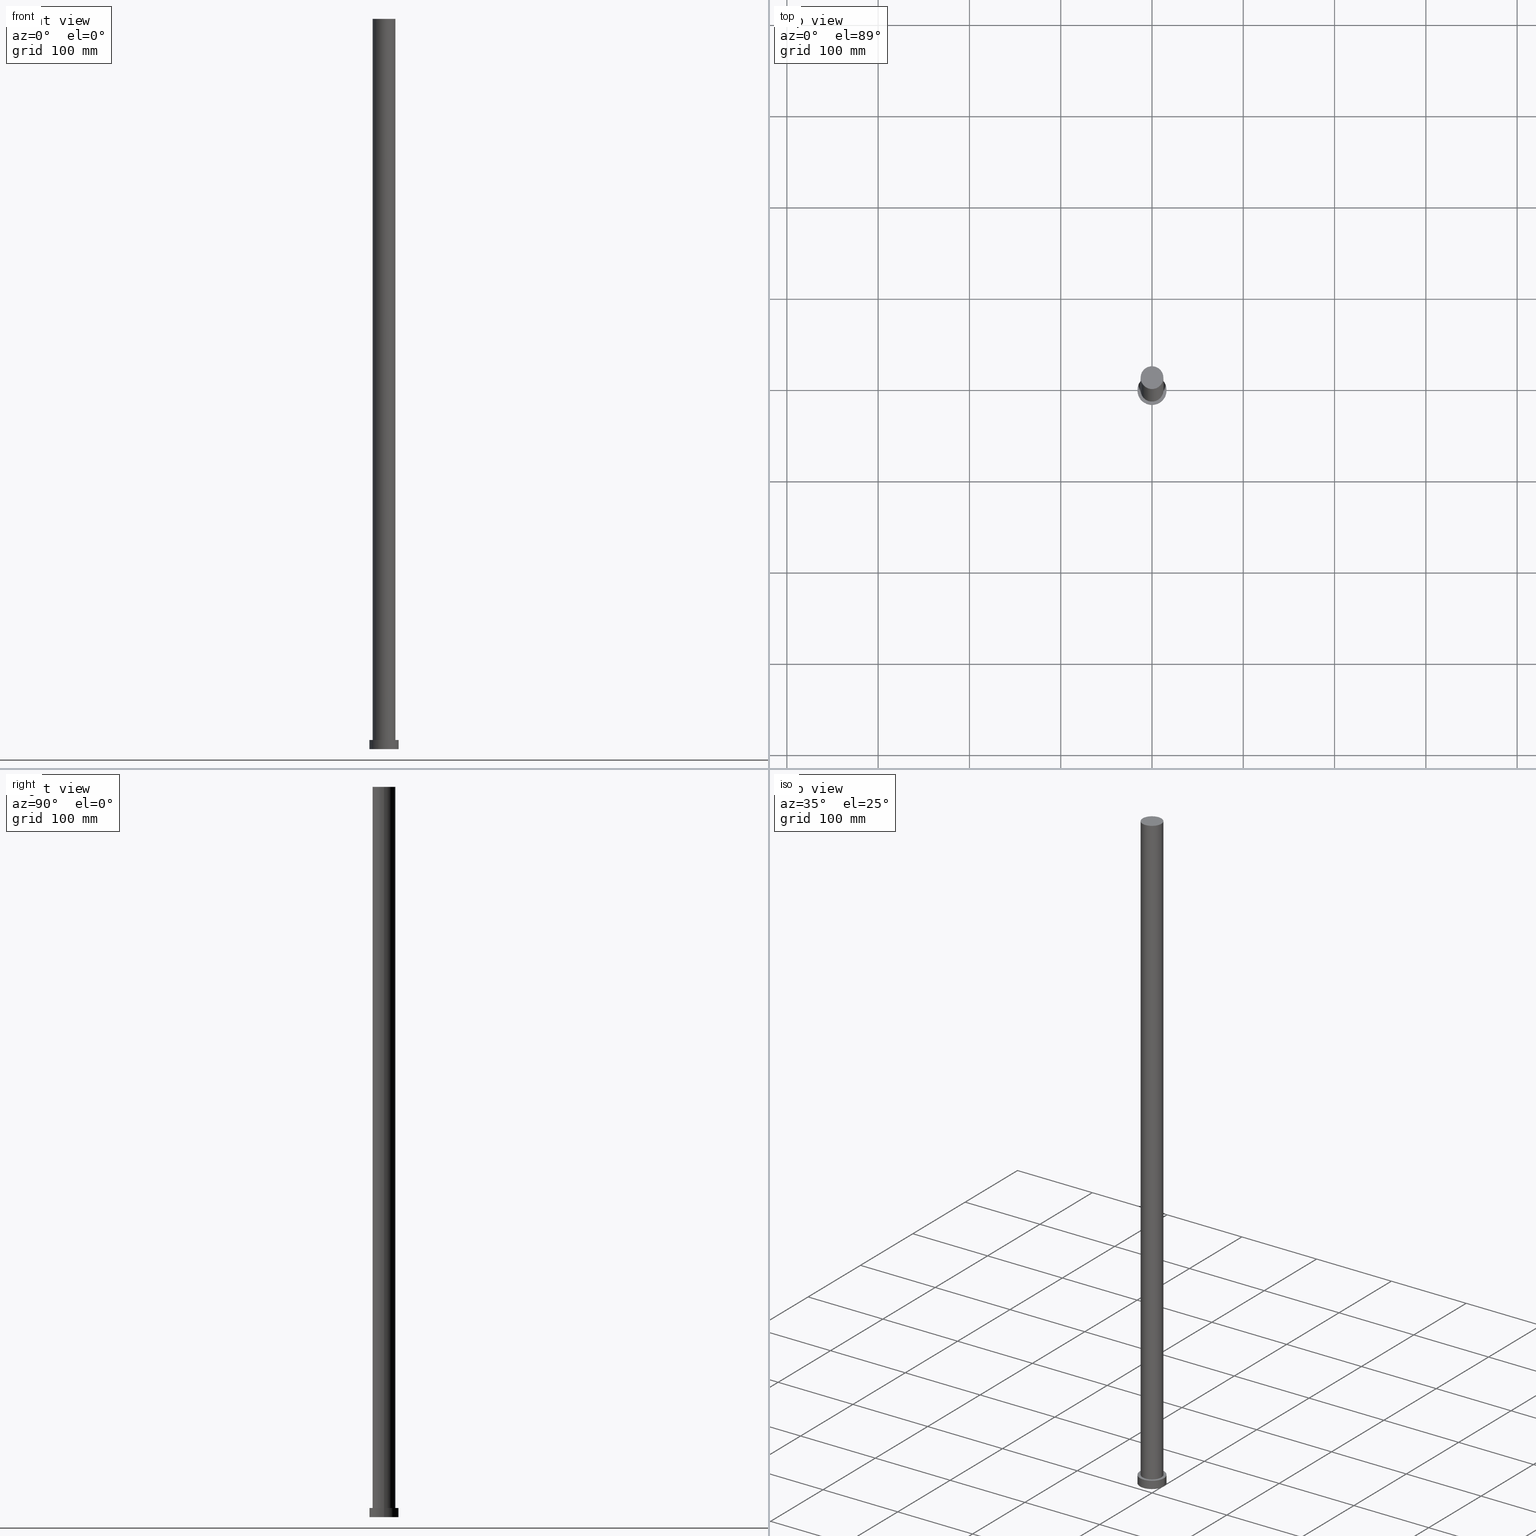
[diagram: canonical four-view strip — front | top / right | iso, engineering-drawing reading convention]
A machine part, canonical four-view strip (front | top / right | iso — engineering-drawing reading convention). The complete STEP part file that produces these views, byte-faithful:
ISO-10303-21;
HEADER;
FILE_DESCRIPTION (( 'STEP AP203' ),
    '1' );
FILE_NAME ('5e6f.STEP',
    '2023-02-13T07:31:16',
    ( '' ),
    ( '' ),
    'SwSTEP 2.0',
    'SolidWorks 2019',
    '' );
FILE_SCHEMA (( 'CONFIG_CONTROL_DESIGN' ));
ENDSEC;

DATA;
#1 = CIRCLE ( 'NONE', #140, 16.00000000000000000 ) ;
#2 = DIRECTION ( 'NONE',  ( 0.000000000000000000, 0.000000000000000000, 1.000000000000000000 ) ) ;
#3 = EDGE_CURVE ( 'NONE', #110, #83, #222, .T. ) ;
#4 = CIRCLE ( 'NONE', #39, 16.00000000000000000 ) ;
#5 = DESIGN_CONTEXT ( 'detailed design', #255, 'design' ) ;
#6 = CARTESIAN_POINT ( 'NONE',  ( 0.000000000000000000, 0.000000000000000000, 10.00000000000000000 ) ) ;
#7 = DIRECTION ( 'NONE',  ( -1.000000000000000000, 0.000000000000000000, 0.000000000000000000 ) ) ;
#8 = EDGE_LOOP ( 'NONE', ( #126, #122, #107, #85 ) ) ;
#9 = ADVANCED_FACE ( 'NONE', ( #160 ), #121, .T. ) ;
#10 = AXIS2_PLACEMENT_3D ( 'NONE', #235, #54, #89 ) ;
#11 = ORIENTED_EDGE ( 'NONE', *, *, #185, .F. ) ;
#12 = PERSON_AND_ORGANIZATION_ROLE ( 'creator' ) ;
#13 = ORIENTED_EDGE ( 'NONE', *, *, #3, .F. ) ;
#14 = PERSON_AND_ORGANIZATION_ROLE ( 'design_supplier' ) ;
#15 = ORIENTED_EDGE ( 'NONE', *, *, #23, .T. ) ;
#16 = SECURITY_CLASSIFICATION_LEVEL ( 'unclassified' ) ;
#17 = PERSON_AND_ORGANIZATION ( #56, #33 ) ;
#18 = FACE_OUTER_BOUND ( 'NONE', #91, .T. ) ;
#19 = DIRECTION ( 'NONE',  ( 1.000000000000000000, 0.000000000000000000, 0.000000000000000000 ) ) ;
#20 = VERTEX_POINT ( 'NONE', #206 ) ;
#21 = CC_DESIGN_APPROVAL ( #135, ( #188 ) ) ;
#22 = ORIENTED_EDGE ( 'NONE', *, *, #180, .F. ) ;
#23 = EDGE_CURVE ( 'NONE', #167, #83, #48, .T. ) ;
#24 = CALENDAR_DATE ( 2023, 13, 2 ) ;
#25 = AXIS2_PLACEMENT_3D ( 'NONE', #81, #53, #101 ) ;
#26 = CARTESIAN_POINT ( 'NONE',  ( 0.000000000000000000, 0.000000000000000000, 10.00000000000000000 ) ) ;
#27 = MECHANICAL_CONTEXT ( 'NONE', #97, 'mechanical' ) ;
#28 = ADVANCED_FACE ( 'NONE', ( #31 ), #106, .T. ) ;
#29 = CARTESIAN_POINT ( 'NONE',  ( 12.50000000000000000, 1.530808498934191127E-15, 800.0000000000000000 ) ) ;
#30 = ORIENTED_EDGE ( 'NONE', *, *, #228, .T. ) ;
#31 = FACE_OUTER_BOUND ( 'NONE', #224, .T. ) ;
#32 = APPROVAL ( #195, 'NEUR�EN�' ) ;
#33 = ORGANIZATION ( 'NEUR�EN�', 'NEUR�EN�', '' ) ;
#34 = EDGE_LOOP ( 'NONE', ( #11, #30, #189, #125 ) ) ;
#35 = APPROVAL_ROLE ( '' ) ;
#36 = VECTOR ( 'NONE', #246, 1000.000000000000000 ) ;
#37 = CARTESIAN_POINT ( 'NONE',  ( 16.00000000000000000, 1.959434878635765131E-15, 10.00000000000000000 ) ) ;
#38 = DIRECTION ( 'NONE',  ( 1.000000000000000000, 0.000000000000000000, 0.000000000000000000 ) ) ;
#39 = AXIS2_PLACEMENT_3D ( 'NONE', #251, #132, #38 ) ;
#40 = EDGE_LOOP ( 'NONE', ( #225, #22, #124, #103 ) ) ;
#41 = CC_DESIGN_PERSON_AND_ORGANIZATION_ASSIGNMENT ( #92, #198, ( #187 ) ) ;
#42 = DATE_AND_TIME ( #24, #163 ) ;
#43 = CC_DESIGN_PERSON_AND_ORGANIZATION_ASSIGNMENT ( #147, #14, ( #188 ) ) ;
#44 = LOCAL_TIME ( 8, 31, 16.00000000000000000, #219 ) ;
#45 = CARTESIAN_POINT ( 'NONE',  ( 0.000000000000000000, 0.000000000000000000, 800.0000000000000000 ) ) ;
#46 = ORIENTED_EDGE ( 'NONE', *, *, #250, .F. ) ;
#47 = CC_DESIGN_DATE_AND_TIME_ASSIGNMENT ( #190, #247, ( #170 ) ) ;
#48 = LINE ( 'NONE', #120, #55 ) ;
#49 = DIRECTION ( 'NONE',  ( -0.000000000000000000, -0.000000000000000000, -1.000000000000000000 ) ) ;
#50 = CIRCLE ( 'NONE', #239, 12.50000000000000000 ) ;
#51 = DIRECTION ( 'NONE',  ( 1.000000000000000000, 0.000000000000000000, 0.000000000000000000 ) ) ;
#52 = CALENDAR_DATE ( 2023, 13, 2 ) ;
#53 = DIRECTION ( 'NONE',  ( -0.000000000000000000, -0.000000000000000000, -1.000000000000000000 ) ) ;
#54 = DIRECTION ( 'NONE',  ( -0.000000000000000000, -0.000000000000000000, -1.000000000000000000 ) ) ;
#55 = VECTOR ( 'NONE', #49, 1000.000000000000000 ) ;
#56 = PERSON ( 'NEUR�EN�', 'NEUR�EN�', 'NEUR�EN�', ('NEUR�EN�'), ('NEUR�EN�'), ('NEUR�EN�') ) ;
#57 = CARTESIAN_POINT ( 'NONE',  ( 12.50000000000000000, 1.530808498934191127E-15, 800.0000000000000000 ) ) ;
#58 = PERSON_AND_ORGANIZATION ( #56, #33 ) ;
#59 = FACE_BOUND ( 'NONE', #144, .T. ) ;
#60 = CIRCLE ( 'NONE', #61, 12.50000000000000000 ) ;
#61 = AXIS2_PLACEMENT_3D ( 'NONE', #175, #2, #240 ) ;
#62 = EDGE_CURVE ( 'NONE', #20, #110, #146, .T. ) ;
#63 = CARTESIAN_POINT ( 'NONE',  ( 16.00000000000000000, 1.959434878635765131E-15, 0.000000000000000000 ) ) ;
#64 = PERSON_AND_ORGANIZATION ( #56, #33 ) ;
#65 = DIRECTION ( 'NONE',  ( 1.000000000000000000, 0.000000000000000000, -0.000000000000000000 ) ) ;
#66 = VERTEX_POINT ( 'NONE', #117 ) ;
#67 = ADVANCED_FACE ( 'NONE', ( #244 ), #139, .T. ) ;
#68 = ORIENTED_EDGE ( 'NONE', *, *, #185, .T. ) ;
#69 = DIRECTION ( 'NONE',  ( 1.000000000000000000, 0.000000000000000000, 0.000000000000000000 ) ) ;
#70 = VERTEX_POINT ( 'NONE', #181 ) ;
#71 = DATE_AND_TIME ( #111, #243 ) ;
#72 = PERSON_AND_ORGANIZATION_ROLE ( 'creator' ) ;
#73 = APPROVAL_STATUS ( 'not_yet_approved' ) ;
#74 = CARTESIAN_POINT ( 'NONE',  ( 0.000000000000000000, 0.000000000000000000, 0.000000000000000000 ) ) ;
#75 = DATE_TIME_ROLE ( 'creation_date' ) ;
#76 = AXIS2_PLACEMENT_3D ( 'NONE', #6, #229, #80 ) ;
#77 = APPLICATION_PROTOCOL_DEFINITION ( 'international standard', 'config_control_design', 1994, #255 ) ;
#78 = APPROVAL_PERSON_ORGANIZATION ( #127, #159, #35 ) ;
#79 = AXIS2_PLACEMENT_3D ( 'NONE', #223, #203, #245 ) ;
#80 = DIRECTION ( 'NONE',  ( 1.000000000000000000, 0.000000000000000000, 0.000000000000000000 ) ) ;
#81 = CARTESIAN_POINT ( 'NONE',  ( 0.000000000000000000, 0.000000000000000000, 800.0000000000000000 ) ) ;
#82 = CARTESIAN_POINT ( 'NONE',  ( 0.000000000000000000, 0.000000000000000000, 10.00000000000000000 ) ) ;
#83 = VERTEX_POINT ( 'NONE', #63 ) ;
#84 = APPROVAL_ROLE ( '' ) ;
#85 = ORIENTED_EDGE ( 'NONE', *, *, #3, .T. ) ;
#86 = CARTESIAN_POINT ( 'NONE',  ( -16.00000000000000000, 0.000000000000000000, 0.000000000000000000 ) ) ;
#87 = CC_DESIGN_PERSON_AND_ORGANIZATION_ASSIGNMENT ( #165, #254, ( #170 ) ) ;
#88 = PLANE ( 'NONE',  #156 ) ;
#89 = DIRECTION ( 'NONE',  ( -1.000000000000000000, 0.000000000000000000, 0.000000000000000000 ) ) ;
#90 = AXIS2_PLACEMENT_3D ( 'NONE', #82, #157, #166 ) ;
#91 = EDGE_LOOP ( 'NONE', ( #13, #183 ) ) ;
#92 = PERSON_AND_ORGANIZATION ( #56, #33 ) ;
#93 = LOCAL_TIME ( 8, 31, 16.00000000000000000, #168 ) ;
#94 = PERSON_AND_ORGANIZATION ( #56, #33 ) ;
#95 = AXIS2_PLACEMENT_3D ( 'NONE', #138, #221, #201 ) ;
#96 = ORIENTED_EDGE ( 'NONE', *, *, #218, .T. ) ;
#97 = APPLICATION_CONTEXT ( 'configuration controlled 3d designs of mechanical parts and assemblies' ) ;
#98 = EDGE_LOOP ( 'NONE', ( #134, #68 ) ) ;
#99 = UNCERTAINTY_MEASURE_WITH_UNIT (LENGTH_MEASURE( 1.000000000000000082E-05 ), #102, 'distance_accuracy_value', 'NONE');
#100 = APPLICATION_PROTOCOL_DEFINITION ( 'international standard', 'config_control_design', 1994, #97 ) ;
#101 = DIRECTION ( 'NONE',  ( -1.000000000000000000, 0.000000000000000000, 0.000000000000000000 ) ) ;
#102 =( LENGTH_UNIT ( ) NAMED_UNIT ( * ) SI_UNIT ( .MILLI., .METRE. ) );
#103 = ORIENTED_EDGE ( 'NONE', *, *, #250, .T. ) ;
#104 = CIRCLE ( 'NONE', #173, 12.50000000000000000 ) ;
#105 = DIRECTION ( 'NONE',  ( 0.000000000000000000, 0.000000000000000000, 1.000000000000000000 ) ) ;
#106 = CYLINDRICAL_SURFACE ( 'NONE', #196, 16.00000000000000000 ) ;
#107 = ORIENTED_EDGE ( 'NONE', *, *, #62, .T. ) ;
#108 = LOCAL_TIME ( 8, 31, 16.00000000000000000, #252 ) ;
#109 = PRODUCT_DEFINITION_SHAPE ( 'NONE', 'NONE',  #172 ) ;
#110 = VERTEX_POINT ( 'NONE', #86 ) ;
#111 = CALENDAR_DATE ( 2023, 13, 2 ) ;
#112 = ADVANCED_FACE ( 'NONE', ( #192 ), #152, .T. ) ;
#113 = CARTESIAN_POINT ( 'NONE',  ( 0.000000000000000000, 0.000000000000000000, 800.0000000000000000 ) ) ;
#114 = LINE ( 'NONE', #194, #123 ) ;
#115 = CC_DESIGN_SECURITY_CLASSIFICATION ( #170, ( #188 ) ) ;
#116 = APPROVAL_DATE_TIME ( #42, #32 ) ;
#117 = CARTESIAN_POINT ( 'NONE',  ( -12.50000000000000000, 0.000000000000000000, 10.00000000000000000 ) ) ;
#118 = LINE ( 'NONE', #29, #36 ) ;
#119 = CIRCLE ( 'NONE', #76, 16.00000000000000000 ) ;
#120 = CARTESIAN_POINT ( 'NONE',  ( 16.00000000000000000, 1.959434878635765131E-15, 10.00000000000000000 ) ) ;
#121 = CYLINDRICAL_SURFACE ( 'NONE', #25, 12.50000000000000000 ) ;
#122 = ORIENTED_EDGE ( 'NONE', *, *, #218, .F. ) ;
#123 = VECTOR ( 'NONE', #211, 1000.000000000000000 ) ;
#124 = ORIENTED_EDGE ( 'NONE', *, *, #153, .T. ) ;
#125 = ORIENTED_EDGE ( 'NONE', *, *, #153, .F. ) ;
#126 = ORIENTED_EDGE ( 'NONE', *, *, #23, .F. ) ;
#127 = PERSON_AND_ORGANIZATION ( #56, #33 ) ;
#128 = APPROVAL_STATUS ( 'not_yet_approved' ) ;
#129 = CARTESIAN_POINT ( 'NONE',  ( 0.000000000000000000, 0.000000000000000000, 10.00000000000000000 ) ) ;
#130 = COORDINATED_UNIVERSAL_TIME_OFFSET ( 1, 0, .AHEAD. ) ;
#131 = EDGE_CURVE ( 'NONE', #83, #110, #4, .T. ) ;
#132 = DIRECTION ( 'NONE',  ( 0.000000000000000000, 0.000000000000000000, 1.000000000000000000 ) ) ;
#133 = COORDINATED_UNIVERSAL_TIME_OFFSET ( 1, 0, .AHEAD. ) ;
#134 = ORIENTED_EDGE ( 'NONE', *, *, #180, .T. ) ;
#135 = APPROVAL ( #128, 'NEUR�EN�' ) ;
#136 = PRODUCT_RELATED_PRODUCT_CATEGORY ( 'detail', '', ( #187 ) ) ;
#137 = DIRECTION ( 'NONE',  ( 0.000000000000000000, 0.000000000000000000, 1.000000000000000000 ) ) ;
#138 = CARTESIAN_POINT ( 'NONE',  ( 0.000000000000000000, 0.000000000000000000, 0.000000000000000000 ) ) ;
#139 = CYLINDRICAL_SURFACE ( 'NONE', #79, 12.50000000000000000 ) ;
#140 = AXIS2_PLACEMENT_3D ( 'NONE', #26, #177, #69 ) ;
#141 = MANIFOLD_SOLID_BREP ( 'P�idat vysunut�m3', #242 ) ;
#142 = ORIENTED_EDGE ( 'NONE', *, *, #238, .T. ) ;
#143 = CARTESIAN_POINT ( 'NONE',  ( 0.000000000000000000, 0.000000000000000000, 0.000000000000000000 ) ) ;
#144 = EDGE_LOOP ( 'NONE', ( #46, #205 ) ) ;
#145 = ADVANCED_FACE ( 'NONE', ( #59, #149 ), #88, .T. ) ;
#146 = LINE ( 'NONE', #231, #176 ) ;
#147 = PERSON_AND_ORGANIZATION ( #56, #33 ) ;
#148 = DIRECTION ( 'NONE',  ( 0.000000000000000000, 0.000000000000000000, 1.000000000000000000 ) ) ;
#149 = FACE_OUTER_BOUND ( 'NONE', #162, .T. ) ;
#150 = AXIS2_PLACEMENT_3D ( 'NONE', #74, #148, #237 ) ;
#151 = ADVANCED_FACE ( 'NONE', ( #18 ), #169, .F. ) ;
#152 = CYLINDRICAL_SURFACE ( 'NONE', #10, 16.00000000000000000 ) ;
#153 = EDGE_CURVE ( 'NONE', #70, #66, #114, .T. ) ;
#154 = APPROVAL_PERSON_ORGANIZATION ( #94, #32, #216 ) ;
#155 = ADVANCED_BREP_SHAPE_REPRESENTATION ( '5e6f', ( #141, #95 ), #204 ) ;
#156 = AXIS2_PLACEMENT_3D ( 'NONE', #129, #171, #214 ) ;
#157 = DIRECTION ( 'NONE',  ( 0.000000000000000000, 0.000000000000000000, 1.000000000000000000 ) ) ;
#158 = DIRECTION ( 'NONE',  ( -0.000000000000000000, -0.000000000000000000, -1.000000000000000000 ) ) ;
#159 = APPROVAL ( #73, 'NEUR�EN�' ) ;
#160 = FACE_OUTER_BOUND ( 'NONE', #34, .T. ) ;
#161 = AXIS2_PLACEMENT_3D ( 'NONE', #143, #230, #51 ) ;
#162 = EDGE_LOOP ( 'NONE', ( #96, #142 ) ) ;
#163 = LOCAL_TIME ( 8, 31, 16.00000000000000000, #133 ) ;
#164 = CC_DESIGN_DATE_AND_TIME_ASSIGNMENT ( #236, #75, ( #172 ) ) ;
#165 = PERSON_AND_ORGANIZATION ( #56, #33 ) ;
#166 = DIRECTION ( 'NONE',  ( 1.000000000000000000, 0.000000000000000000, 0.000000000000000000 ) ) ;
#167 = VERTEX_POINT ( 'NONE', #37 ) ;
#168 = COORDINATED_UNIVERSAL_TIME_OFFSET ( 1, 0, .AHEAD. ) ;
#169 = PLANE ( 'NONE',  #150 ) ;
#170 = SECURITY_CLASSIFICATION ( '', '', #16 ) ;
#171 = DIRECTION ( 'NONE',  ( 0.000000000000000000, 0.000000000000000000, 1.000000000000000000 ) ) ;
#172 = PRODUCT_DEFINITION ( 'NEZN�M�', '', #188, #5 ) ;
#173 = AXIS2_PLACEMENT_3D ( 'NONE', #113, #193, #19 ) ;
#174 = CIRCLE ( 'NONE', #90, 12.50000000000000000 ) ;
#175 = CARTESIAN_POINT ( 'NONE',  ( 0.000000000000000000, 0.000000000000000000, 800.0000000000000000 ) ) ;
#176 = VECTOR ( 'NONE', #158, 1000.000000000000000 ) ;
#177 = DIRECTION ( 'NONE',  ( 0.000000000000000000, 0.000000000000000000, 1.000000000000000000 ) ) ;
#178 = VERTEX_POINT ( 'NONE', #57 ) ;
#179 = VERTEX_POINT ( 'NONE', #212 ) ;
#180 = EDGE_CURVE ( 'NONE', #70, #178, #104, .T. ) ;
#181 = CARTESIAN_POINT ( 'NONE',  ( -12.50000000000000000, 0.000000000000000000, 800.0000000000000000 ) ) ;
#182 =( NAMED_UNIT ( * ) PLANE_ANGLE_UNIT ( ) SI_UNIT ( $, .RADIAN. ) );
#183 = ORIENTED_EDGE ( 'NONE', *, *, #131, .F. ) ;
#184 = DIRECTION ( 'NONE',  ( -0.000000000000000000, -0.000000000000000000, -1.000000000000000000 ) ) ;
#185 = EDGE_CURVE ( 'NONE', #178, #70, #60, .T. ) ;
#186 = APPROVAL_DATE_TIME ( #71, #135 ) ;
#187 = PRODUCT ( '5e6f', '5e6f', '', ( #27 ) ) ;
#188 = PRODUCT_DEFINITION_FORMATION_WITH_SPECIFIED_SOURCE ( 'LIBOVOLN�', '', #187, .NOT_KNOWN. ) ;
#189 = ORIENTED_EDGE ( 'NONE', *, *, #213, .T. ) ;
#190 = DATE_AND_TIME ( #52, #108 ) ;
#191 = APPROVAL_DATE_TIME ( #232, #159 ) ;
#192 = FACE_OUTER_BOUND ( 'NONE', #8, .T. ) ;
#193 = DIRECTION ( 'NONE',  ( 0.000000000000000000, 0.000000000000000000, 1.000000000000000000 ) ) ;
#194 = CARTESIAN_POINT ( 'NONE',  ( -12.50000000000000000, 0.000000000000000000, 800.0000000000000000 ) ) ;
#195 = APPROVAL_STATUS ( 'not_yet_approved' ) ;
#196 = AXIS2_PLACEMENT_3D ( 'NONE', #248, #184, #7 ) ;
#197 = DIRECTION ( 'NONE',  ( 1.000000000000000000, 0.000000000000000000, 0.000000000000000000 ) ) ;
#198 = PERSON_AND_ORGANIZATION_ROLE ( 'design_owner' ) ;
#199 = CC_DESIGN_APPROVAL ( #32, ( #172 ) ) ;
#200 = FACE_OUTER_BOUND ( 'NONE', #98, .T. ) ;
#201 = DIRECTION ( 'NONE',  ( 1.000000000000000000, 0.000000000000000000, 0.000000000000000000 ) ) ;
#202 = CC_DESIGN_APPROVAL ( #159, ( #170 ) ) ;
#203 = DIRECTION ( 'NONE',  ( -0.000000000000000000, -0.000000000000000000, -1.000000000000000000 ) ) ;
#204 =( GEOMETRIC_REPRESENTATION_CONTEXT ( 3 ) GLOBAL_UNCERTAINTY_ASSIGNED_CONTEXT ( ( #99 ) ) GLOBAL_UNIT_ASSIGNED_CONTEXT ( ( #102, #182, #226 ) ) REPRESENTATION_CONTEXT ( 'NONE', 'WORKASPACE' ) );
#205 = ORIENTED_EDGE ( 'NONE', *, *, #213, .F. ) ;
#206 = CARTESIAN_POINT ( 'NONE',  ( -16.00000000000000000, 0.000000000000000000, 10.00000000000000000 ) ) ;
#207 = CALENDAR_DATE ( 2023, 13, 2 ) ;
#208 = APPROVAL_PERSON_ORGANIZATION ( #58, #135, #84 ) ;
#209 = ORIENTED_EDGE ( 'NONE', *, *, #131, .T. ) ;
#210 = CC_DESIGN_PERSON_AND_ORGANIZATION_ASSIGNMENT ( #64, #12, ( #172 ) ) ;
#211 = DIRECTION ( 'NONE',  ( -0.000000000000000000, -0.000000000000000000, -1.000000000000000000 ) ) ;
#212 = CARTESIAN_POINT ( 'NONE',  ( 12.50000000000000000, 1.530808498934191127E-15, 10.00000000000000000 ) ) ;
#213 = EDGE_CURVE ( 'NONE', #179, #66, #50, .T. ) ;
#214 = DIRECTION ( 'NONE',  ( 1.000000000000000000, 0.000000000000000000, -0.000000000000000000 ) ) ;
#215 = ORIENTED_EDGE ( 'NONE', *, *, #62, .F. ) ;
#216 = APPROVAL_ROLE ( '' ) ;
#217 = CARTESIAN_POINT ( 'NONE',  ( 0.000000000000000000, 0.000000000000000000, 10.00000000000000000 ) ) ;
#218 = EDGE_CURVE ( 'NONE', #20, #167, #1, .T. ) ;
#219 = COORDINATED_UNIVERSAL_TIME_OFFSET ( 1, 0, .AHEAD. ) ;
#220 = PLANE ( 'NONE',  #253 ) ;
#221 = DIRECTION ( 'NONE',  ( 0.000000000000000000, 0.000000000000000000, 1.000000000000000000 ) ) ;
#222 = CIRCLE ( 'NONE', #161, 16.00000000000000000 ) ;
#223 = CARTESIAN_POINT ( 'NONE',  ( 0.000000000000000000, 0.000000000000000000, 800.0000000000000000 ) ) ;
#224 = EDGE_LOOP ( 'NONE', ( #227, #15, #209, #215 ) ) ;
#225 = ORIENTED_EDGE ( 'NONE', *, *, #228, .F. ) ;
#226 =( NAMED_UNIT ( * ) SI_UNIT ( $, .STERADIAN. ) SOLID_ANGLE_UNIT ( ) );
#227 = ORIENTED_EDGE ( 'NONE', *, *, #238, .F. ) ;
#228 = EDGE_CURVE ( 'NONE', #178, #179, #118, .T. ) ;
#229 = DIRECTION ( 'NONE',  ( 0.000000000000000000, 0.000000000000000000, 1.000000000000000000 ) ) ;
#230 = DIRECTION ( 'NONE',  ( 0.000000000000000000, 0.000000000000000000, 1.000000000000000000 ) ) ;
#231 = CARTESIAN_POINT ( 'NONE',  ( -16.00000000000000000, 0.000000000000000000, 10.00000000000000000 ) ) ;
#232 = DATE_AND_TIME ( #249, #93 ) ;
#233 = ADVANCED_FACE ( 'NONE', ( #200 ), #220, .T. ) ;
#234 = SHAPE_DEFINITION_REPRESENTATION ( #109, #155 ) ;
#235 = CARTESIAN_POINT ( 'NONE',  ( 0.000000000000000000, 0.000000000000000000, 10.00000000000000000 ) ) ;
#236 = DATE_AND_TIME ( #207, #44 ) ;
#237 = DIRECTION ( 'NONE',  ( 1.000000000000000000, 0.000000000000000000, -0.000000000000000000 ) ) ;
#238 = EDGE_CURVE ( 'NONE', #167, #20, #119, .T. ) ;
#239 = AXIS2_PLACEMENT_3D ( 'NONE', #217, #137, #197 ) ;
#240 = DIRECTION ( 'NONE',  ( 1.000000000000000000, 0.000000000000000000, 0.000000000000000000 ) ) ;
#241 = CC_DESIGN_PERSON_AND_ORGANIZATION_ASSIGNMENT ( #17, #72, ( #188 ) ) ;
#242 = CLOSED_SHELL ( 'NONE', ( #9, #28, #112, #145, #151, #67, #233 ) ) ;
#243 = LOCAL_TIME ( 8, 31, 16.00000000000000000, #130 ) ;
#244 = FACE_OUTER_BOUND ( 'NONE', #40, .T. ) ;
#245 = DIRECTION ( 'NONE',  ( -1.000000000000000000, 0.000000000000000000, 0.000000000000000000 ) ) ;
#246 = DIRECTION ( 'NONE',  ( -0.000000000000000000, -0.000000000000000000, -1.000000000000000000 ) ) ;
#247 = DATE_TIME_ROLE ( 'classification_date' ) ;
#248 = CARTESIAN_POINT ( 'NONE',  ( 0.000000000000000000, 0.000000000000000000, 10.00000000000000000 ) ) ;
#249 = CALENDAR_DATE ( 2023, 13, 2 ) ;
#250 = EDGE_CURVE ( 'NONE', #66, #179, #174, .T. ) ;
#251 = CARTESIAN_POINT ( 'NONE',  ( 0.000000000000000000, 0.000000000000000000, 0.000000000000000000 ) ) ;
#252 = COORDINATED_UNIVERSAL_TIME_OFFSET ( 1, 0, .AHEAD. ) ;
#253 = AXIS2_PLACEMENT_3D ( 'NONE', #45, #105, #65 ) ;
#254 = PERSON_AND_ORGANIZATION_ROLE ( 'classification_officer' ) ;
#255 = APPLICATION_CONTEXT ( 'configuration controlled 3d designs of mechanical parts and assemblies' ) ;
ENDSEC;
END-ISO-10303-21;
